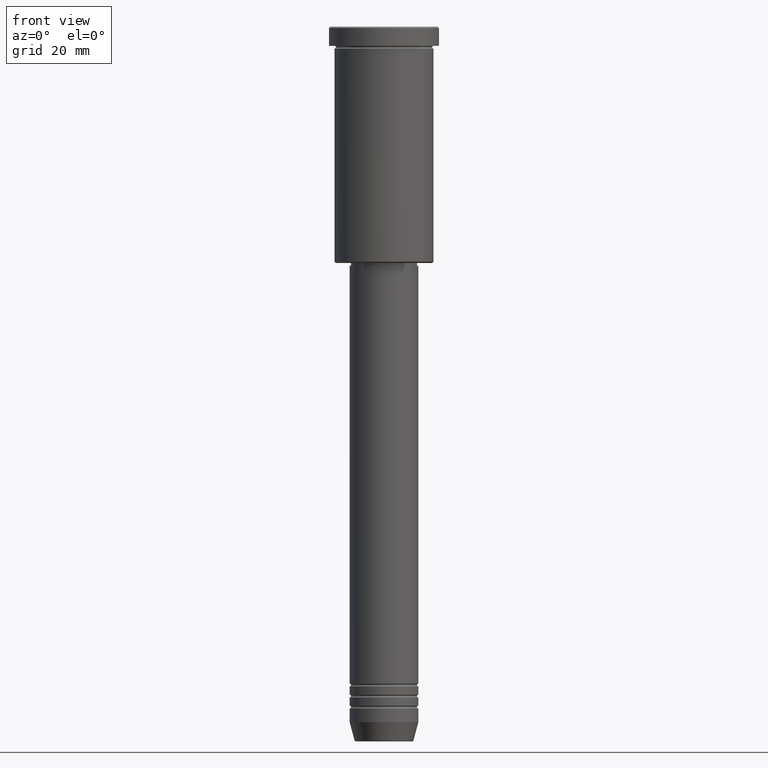
[diagram: clean part render]
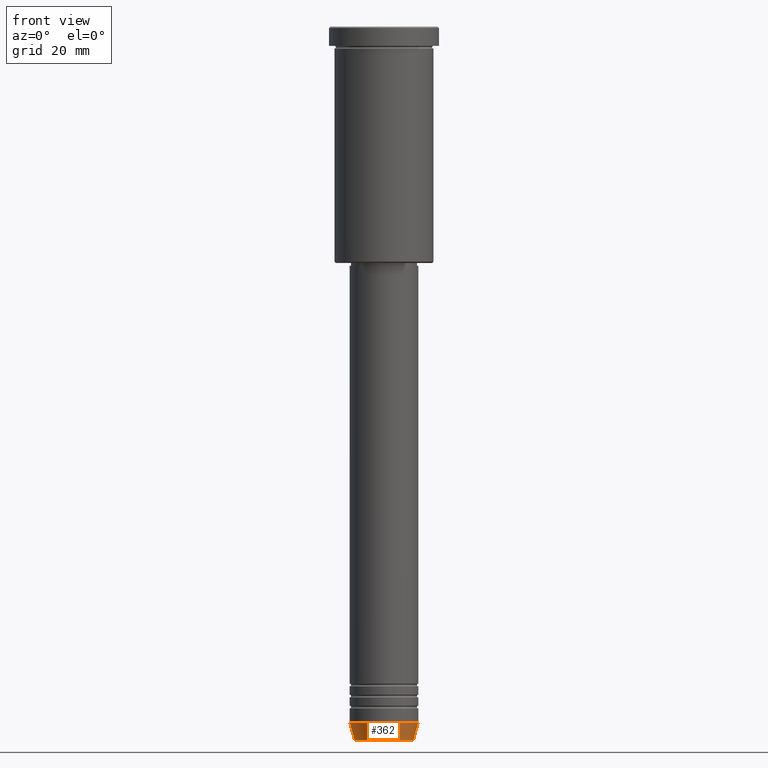
[diagram: same view with one face highlighted and labeled with its STEP entity id]
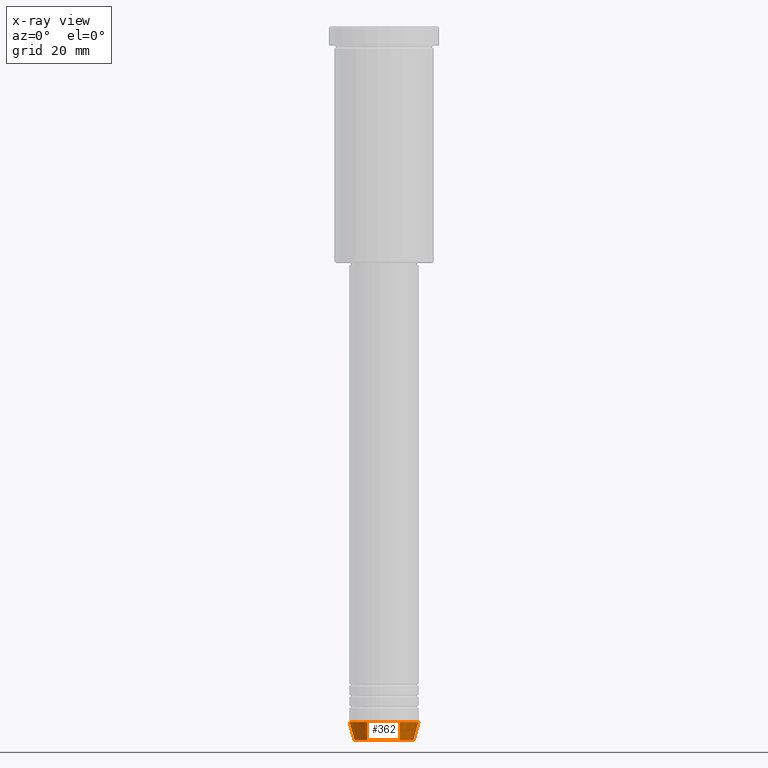
[diagram: x-ray of the same camera — body ghosted, the highlighted face saturated]
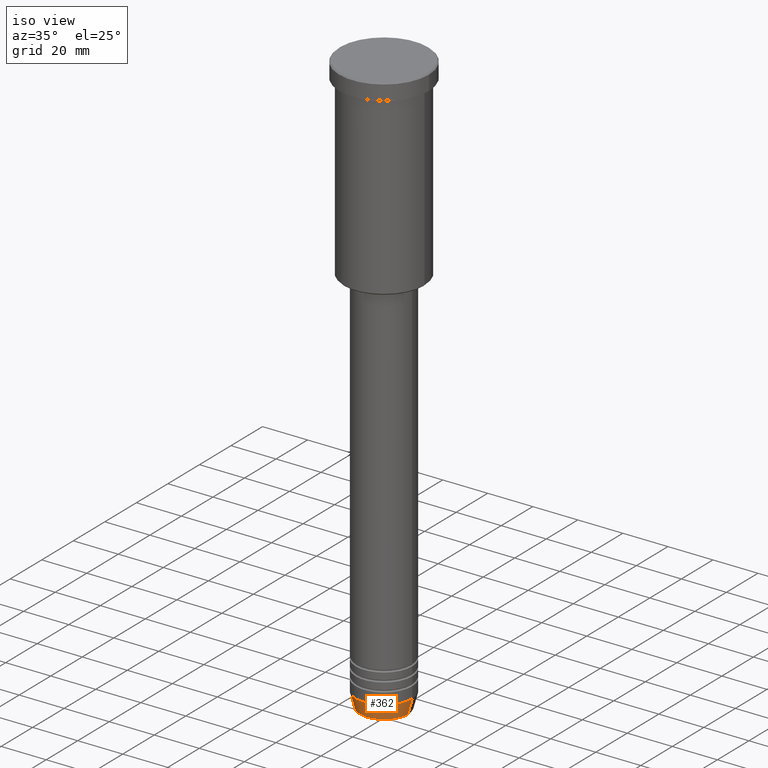
[diagram: same view with one face highlighted and labeled with its STEP entity id]
A machine part, front view. The second image highlights one B-rep face of the part: STEP entity #362.
The next image is the same camera in x-ray: the body ghosted, the highlighted face saturated — about 0% of this face is hidden behind the body in this view.
A second angle (iso view) of the same face is appended — the face is thin or edge-on in the first view.
In plain terms, the highlighted conical surface has half-angle 15 deg.
Its self-contained STEP definition (entity closure, byte-faithful):
#70 = EDGE_LOOP ( 'NONE', ( #441, #1165, #98, #138 ) ) ;
#95 = CARTESIAN_POINT ( 'NONE',  ( -12.50000000000000000, 1.530808498934191521E-15, -253.0000000000000000 ) ) ;
#98 = ORIENTED_EDGE ( 'NONE', *, *, #387, .T. ) ;
#101 = AXIS2_PLACEMENT_3D ( 'NONE', #253, #922, #632 ) ;
#104 = CARTESIAN_POINT ( 'NONE',  ( 12.50000000000000000, 0.000000000000000000, -253.0000000000000000 ) ) ;
#124 = EDGE_CURVE ( 'NONE', #486, #837, #762, .T. ) ;
#137 = AXIS2_PLACEMENT_3D ( 'NONE', #493, #1126, #307 ) ;
#138 = ORIENTED_EDGE ( 'NONE', *, *, #367, .F. ) ;
#151 = VERTEX_POINT ( 'NONE', #104 ) ;
#224 = EDGE_CURVE ( 'NONE', #486, #516, #395, .T. ) ;
#246 = DIRECTION ( 'NONE',  ( -0.000000000000000000, -0.000000000000000000, 1.000000000000000000 ) ) ;
#253 = CARTESIAN_POINT ( 'NONE',  ( 0.000000000000000000, 0.000000000000000000, -253.0000000000000000 ) ) ;
#262 = CARTESIAN_POINT ( 'NONE',  ( 0.000000000000000000, 0.000000000000000000, -253.0000000000000000 ) ) ;
#273 = DIRECTION ( 'NONE',  ( -0.2588190451025213501, 3.169619151431772337E-17, 0.9659258262890680902 ) ) ;
#275 = VECTOR ( 'NONE', #273, 1000.000000000000000 ) ;
#307 = DIRECTION ( 'NONE',  ( 1.000000000000000000, 0.000000000000000000, 0.000000000000000000 ) ) ;
#349 = CONICAL_SURFACE ( 'NONE', #468, 12.50000000000000000, 0.2617993877991500740 ) ;
#362 = ADVANCED_FACE ( 'NONE', ( #1167 ), #349, .T. ) ;
#367 = EDGE_CURVE ( 'NONE', #837, #151, #587, .T. ) ;
#387 = EDGE_CURVE ( 'NONE', #516, #151, #619, .T. ) ;
#395 = CIRCLE ( 'NONE', #137, 10.72365507213719127 ) ;
#441 = ORIENTED_EDGE ( 'NONE', *, *, #124, .F. ) ;
#468 = AXIS2_PLACEMENT_3D ( 'NONE', #262, #246, #707 ) ;
#486 = VERTEX_POINT ( 'NONE', #582 ) ;
#493 = CARTESIAN_POINT ( 'NONE',  ( 0.000000000000000000, 0.000000000000000000, -259.6294095225512706 ) ) ;
#516 = VERTEX_POINT ( 'NONE', #1044 ) ;
#582 = CARTESIAN_POINT ( 'NONE',  ( -10.72365507213719127, 1.422038742429750516E-15, -259.6294095225512706 ) ) ;
#587 = CIRCLE ( 'NONE', #101, 12.50000000000000000 ) ;
#619 = LINE ( 'NONE', #1156, #793 ) ;
#632 = DIRECTION ( 'NONE',  ( 1.000000000000000000, 0.000000000000000000, 0.000000000000000000 ) ) ;
#707 = DIRECTION ( 'NONE',  ( 1.000000000000000000, 0.000000000000000000, 0.000000000000000000 ) ) ;
#748 = CARTESIAN_POINT ( 'NONE',  ( -12.50000000000000000, 1.530808498934191521E-15, -253.0000000000000000 ) ) ;
#762 = LINE ( 'NONE', #748, #275 ) ;
#793 = VECTOR ( 'NONE', #978, 1000.000000000000000 ) ;
#837 = VERTEX_POINT ( 'NONE', #95 ) ;
#922 = DIRECTION ( 'NONE',  ( -0.000000000000000000, -0.000000000000000000, 1.000000000000000000 ) ) ;
#978 = DIRECTION ( 'NONE',  ( 0.2588190451025213501, 0.000000000000000000, 0.9659258262890680902 ) ) ;
#1044 = CARTESIAN_POINT ( 'NONE',  ( 10.72365507213719127, 0.000000000000000000, -259.6294095225512706 ) ) ;
#1126 = DIRECTION ( 'NONE',  ( -0.000000000000000000, -0.000000000000000000, 1.000000000000000000 ) ) ;
#1156 = CARTESIAN_POINT ( 'NONE',  ( 12.50000000000000000, 0.000000000000000000, -253.0000000000000000 ) ) ;
#1165 = ORIENTED_EDGE ( 'NONE', *, *, #224, .T. ) ;
#1167 = FACE_OUTER_BOUND ( 'NONE', #70, .T. ) ;